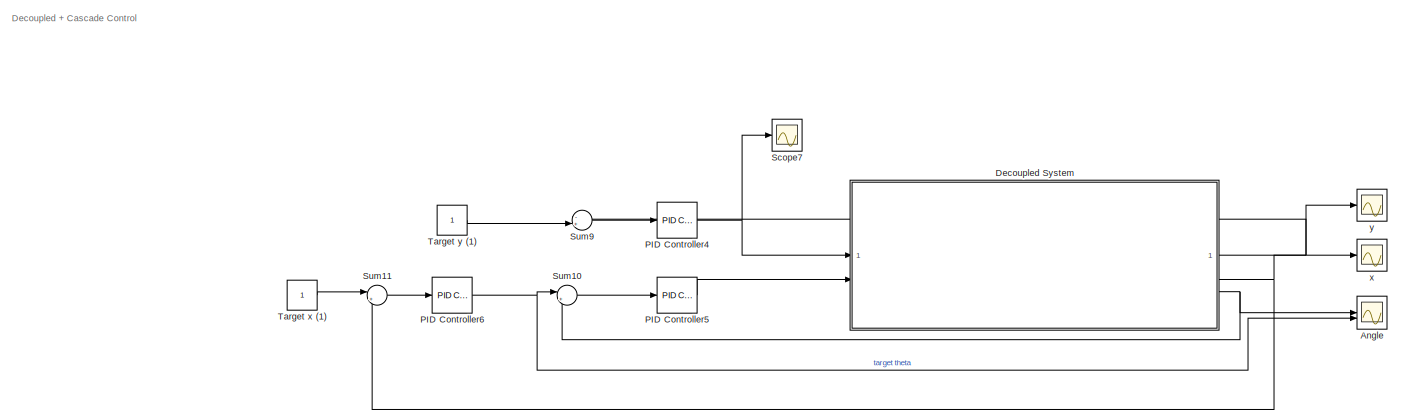
[diagram: root canvas - part 1/5, middle right region]
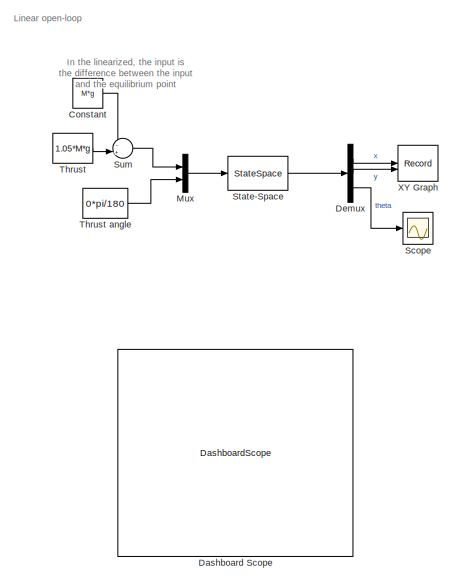
[diagram: root canvas - part 2/5, left side, full height]
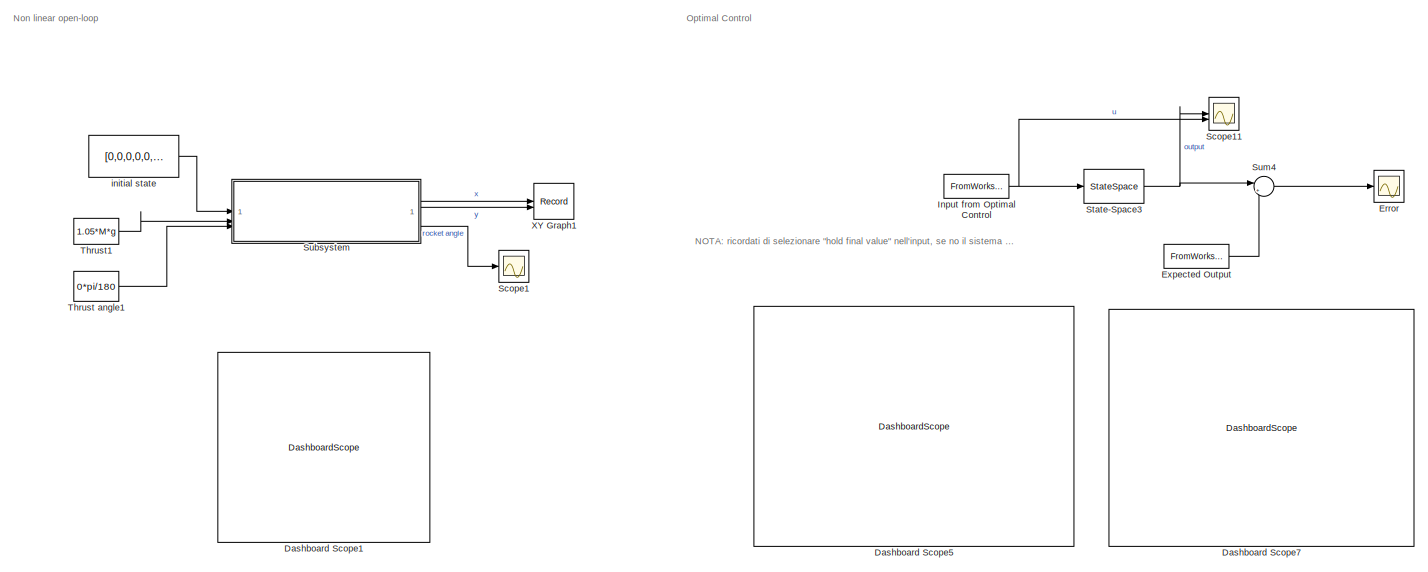
[diagram: root canvas - part 3/5, left side, full height]
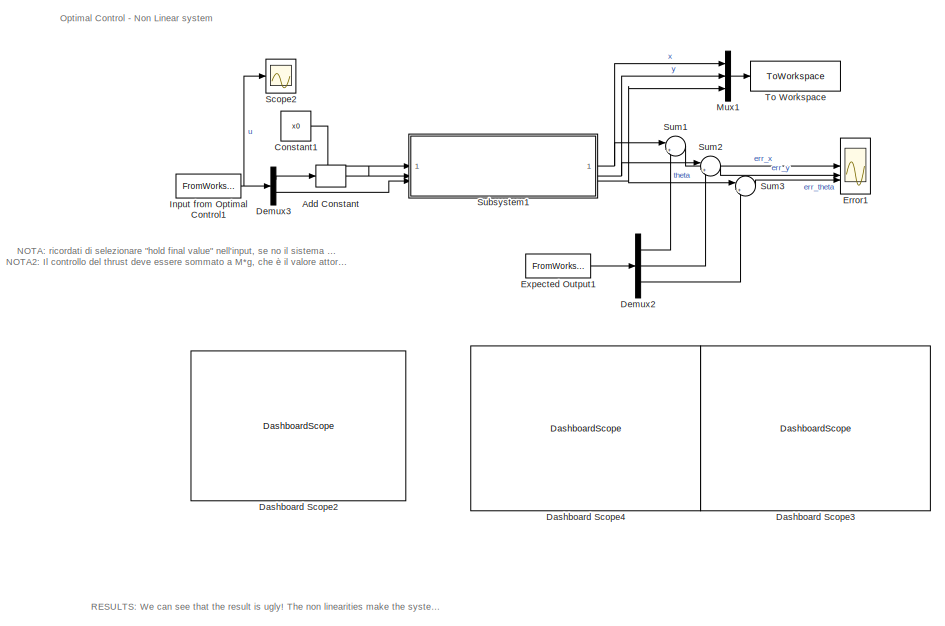
[diagram: root canvas - part 4/5, center side, full height]
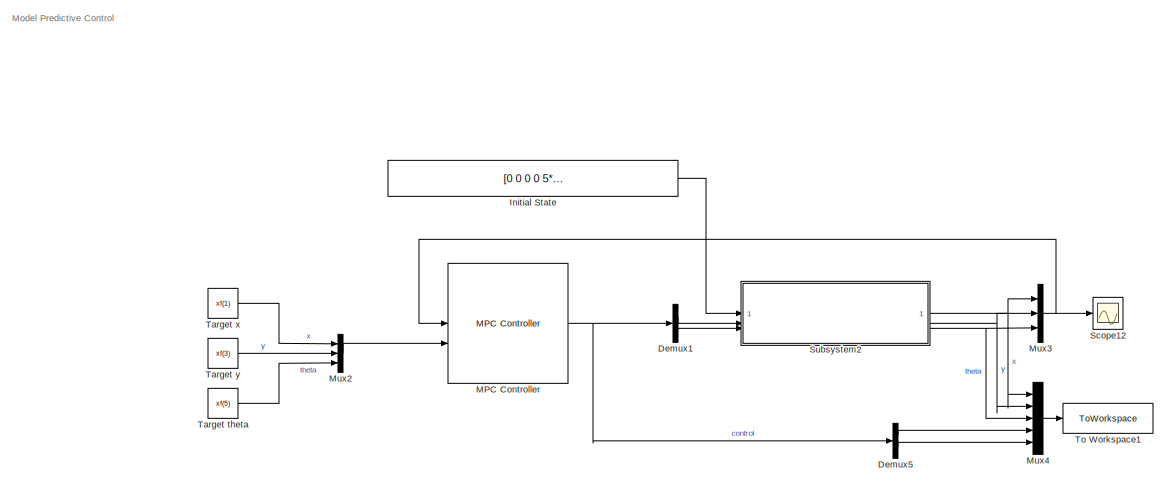
[diagram: root canvas - part 5/5, center side, full height]
MODEL slx_1d75a5e45728
KIND model
CONFIG AbsTol = auto
CONFIG EnableMultiTasking = off
CONFIG FixedStep = auto
CONFIG MaxStep = auto
CONFIG MinStep = auto
CONFIG RelTol = 1e-3
CONFIG SampleTimeConstraint = Unconstrained
CONFIG SolverName = VariableStepAuto
CONFIG StartTime = 0.0
CONFIG StopTime = 20.0
BLOCK [Bias] Add Constant
  Bias = M*g
  SaturateOnIntegerOverflow = off
BLOCK [Scope] Angle
  Floating = off
  NumInputPorts = 2
  ScopeSpecificationString = Simulink.scopes.TimeScopeBlockCfg('CurrentConfiguration', extmgr.ConfigurationSet(extmgr.Configuration('Core','General UI',true),extmgr.Configuration('Core','Source UI',true),extmgr.Configuration('Sources','WiredSimulink',true,'DataLoggingVariableName','ScopeData2'),extmgr.Configuration('Visuals','Time Domain',true,'SerializedDisplays',{struct('MinYLimReal','-1.07256','MaxYLimReal','0.20991','YLab...<+1479ch>
BLOCK [Constant] Constant
  Value = M*g
BLOCK [Constant] Constant1
  Value = x0
BLOCK [DashboardScope] Dashboard Scope
BLOCK [DashboardScope] Dashboard Scope1
BLOCK [DashboardScope] Dashboard Scope2
BLOCK [DashboardScope] Dashboard Scope3
BLOCK [DashboardScope] Dashboard Scope4
BLOCK [DashboardScope] Dashboard Scope5
BLOCK [DashboardScope] Dashboard Scope7
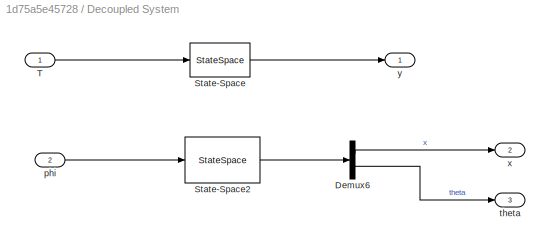
BLOCK [SubSystem] Decoupled System
BLOCK [Demux] Decoupled System/Demux6
  Outputs = 2
BLOCK [StateSpace] Decoupled System/State-Space
  A = Ay
  B = By
  C = Cy
  D = Dy
  InitialCondition = [0, 0]
BLOCK [StateSpace] Decoupled System/State-Space2
  A = Axt
  B = Bxt
  C = Cxt
  D = Dxt
  InitialCondition = [0 0 0 0]
BLOCK [Inport] Decoupled System/T
BLOCK [Inport] Decoupled System/phi
  Port = 2
BLOCK [Outport] Decoupled System/theta
  Port = 3
BLOCK [Outport] Decoupled System/x
  Port = 2
BLOCK [Outport] Decoupled System/y
BLOCK [Demux] Demux
  Outputs = 3
BLOCK [Demux] Demux1
  Commented = on
  Outputs = 2
BLOCK [Demux] Demux2
  Outputs = 3
BLOCK [Demux] Demux3
  Outputs = 2
BLOCK [Demux] Demux5
  Commented = on
  Outputs = 2
BLOCK [Scope] Error
  Floating = off
  NumInputPorts = 1
  ScopeSpecificationString = Simulink.scopes.TimeScopeBlockCfg('CurrentConfiguration', extmgr.ConfigurationSet(extmgr.Configuration('Core','General UI',true),extmgr.Configuration('Core','Source UI',true),extmgr.Configuration('Sources','WiredSimulink',true,'DataLoggingVariableName','ScopeData1'),extmgr.Configuration('Visuals','Time Domain',true,'SerializedDisplays',{struct('MinYLimReal','-0.01214','MaxYLimReal','0.00524','YLab...<+1472ch>
BLOCK [Scope] Error1
  Floating = off
  NumInputPorts = 3
  ScopeSpecificationString = Simulink.scopes.TimeScopeBlockCfg('CurrentConfiguration', extmgr.ConfigurationSet(extmgr.Configuration('Core','General UI',true),extmgr.Configuration('Core','Source UI',true),extmgr.Configuration('Sources','WiredSimulink',true,'DataLoggingVariableName','ScopeData3'),extmgr.Configuration('Visuals','Time Domain',true,'SerializedDisplays',{struct('MinYLimReal','-1.97863','MaxYLimReal','3.18409','YLab...<+1473ch>
BLOCK [FromWorkspace] Expected Output
  OutputAfterFinalValue = Holding final value
  VariableName = ySim
BLOCK [FromWorkspace] Expected Output1
  OutputAfterFinalValue = Holding final value
  VariableName = ySim
BLOCK [Constant] Initial State
  Commented = on
  Value = [0 0 0 0 5*pi/180 0]
BLOCK [FromWorkspace] Input from Optimal Control
  OutputAfterFinalValue = Holding final value
  SampleTime = Ts
  VariableName = uSim
BLOCK [FromWorkspace] Input from Optimal Control1
  OutputAfterFinalValue = Holding final value
  SampleTime = Ts
  VariableName = uSim
BLOCK [Reference] MPC Controller  REF=mpclib/MPC Controller  (lib defined in mdl_ae329e0e0455)
  Commented = on
  SCDEnableBlockLinearizationSpecification = on
  SourceBlock = mpclib/MPC Controller
  SourceType = MPC
BLOCK [Mux] Mux
  DisplayOption = bar
  Inputs = 2
BLOCK [Mux] Mux1
  DisplayOption = bar
  Inputs = 3
BLOCK [Mux] Mux2
  Commented = on
  DisplayOption = bar
  Inputs = 3
BLOCK [Mux] Mux3
  Commented = on
  DisplayOption = bar
  Inputs = 3
BLOCK [Mux] Mux4
  Commented = on
  DisplayOption = bar
  Inputs = 5
BLOCK [Reference] PID Controller4  REF=slpidlib/PID Controller
  LibrarySourceBlock = simulink/Continuous/PID Controller
  SourceBlock = slpidlib/PID Controller
  SourceType = PID 1dof
BLOCK [Reference] PID Controller5  REF=slpidlib/PID Controller
  LibrarySourceBlock = simulink/Continuous/PID Controller
  SourceBlock = slpidlib/PID Controller
  SourceType = PID 1dof
BLOCK [Reference] PID Controller6  REF=slpidlib/PID Controller
  LibrarySourceBlock = simulink/Continuous/PID Controller
  SourceBlock = slpidlib/PID Controller
  SourceType = PID 1dof
BLOCK [Scope] Scope
  Floating = off
  NumInputPorts = 1
  ScopeSpecificationString = Simulink.scopes.TimeScopeBlockCfg('CurrentConfiguration', extmgr.ConfigurationSet(extmgr.Configuration('Core','General UI',true),extmgr.Configuration('Core','Source UI',true),extmgr.Configuration('Sources','WiredSimulink',true,'DataLoggingVariableName','ScopeData1'),extmgr.Configuration('Visuals','Time Domain',true),extmgr.Configuration('Tools','Plot Navigation',true),extmgr.Configuration('Tools',...<+40ch>
BLOCK [Scope] Scope1
  Floating = off
  NumInputPorts = 1
  ScopeSpecificationString = Simulink.scopes.TimeScopeBlockCfg('CurrentConfiguration', extmgr.ConfigurationSet(extmgr.Configuration('Core','General UI',true),extmgr.Configuration('Core','Source UI',true),extmgr.Configuration('Sources','WiredSimulink',true),extmgr.Configuration('Visuals','Time Domain',true,'SerializedDisplays',{struct('MinYLimReal','-46.22619','MaxYLimReal','5.13624','YLabelReal','','MinYLimMag','0.00000','Max...<+1425ch>
BLOCK [Scope] Scope11
  Floating = off
  NumInputPorts = 2
  ScopeSpecificationString = Simulink.scopes.TimeScopeBlockCfg('CurrentConfiguration', extmgr.ConfigurationSet(extmgr.Configuration('Core','General UI',true),extmgr.Configuration('Core','Source UI',true),extmgr.Configuration('Sources','WiredSimulink',true,'DataLoggingVariableName','ScopeData2'),extmgr.Configuration('Visuals','Time Domain',true,'SerializedDisplays',{struct('MinYLimReal','-18.39375','MaxYLimReal','18.39375','YL...<+1496ch>
BLOCK [Scope] Scope12
  Commented = on
  Floating = off
  NumInputPorts = 1
  ScopeSpecificationString = Simulink.scopes.TimeScopeBlockCfg('CurrentConfiguration', extmgr.ConfigurationSet(extmgr.Configuration('Core','General UI',true),extmgr.Configuration('Core','Source UI',true),extmgr.Configuration('Sources','WiredSimulink',true,'DataLoggingVariableName','ScopeData5'),extmgr.Configuration('Visuals','Time Domain',true,'SerializedDisplays',{struct('MinYLimReal','-17.76328','MaxYLimReal','2.28583','YLa...<+1465ch>
BLOCK [Scope] Scope2
  Floating = off
  NumInputPorts = 1
  ScopeSpecificationString = Simulink.scopes.TimeScopeBlockCfg('CurrentConfiguration', extmgr.ConfigurationSet(extmgr.Configuration('Core','General UI',true),extmgr.Configuration('Core','Source UI',true),extmgr.Configuration('Sources','WiredSimulink',true,'DataLoggingVariableName','ScopeData4'),extmgr.Configuration('Visuals','Time Domain',true,'SerializedDisplays',{struct('MinYLimReal','-18.39375','MaxYLimReal','18.39375','YL...<+1492ch>
BLOCK [Scope] Scope7
  Floating = off
  NumInputPorts = 1
  ScopeSpecificationString = Simulink.scopes.TimeScopeBlockCfg('CurrentConfiguration', extmgr.ConfigurationSet(extmgr.Configuration('Core','General UI',true),extmgr.Configuration('Core','Source UI',true),extmgr.Configuration('Sources','WiredSimulink',true,'DataLoggingVariableName','ScopeData1'),extmgr.Configuration('Visuals','Time Domain',true,'SerializedDisplays',{struct('MinYLimReal','-32.3576','MaxYLimReal','272.34163','YL...<+1471ch>
BLOCK [StateSpace] State-Space
  A = A
  B = B
  C = C
  D = D
  InitialCondition = [0, 0, 0, 0, 0, 0]
BLOCK [StateSpace] State-Space3
  A = sys.a
  B = sys.b
  C = sys.c
  D = sys.d
  InitialCondition = x0
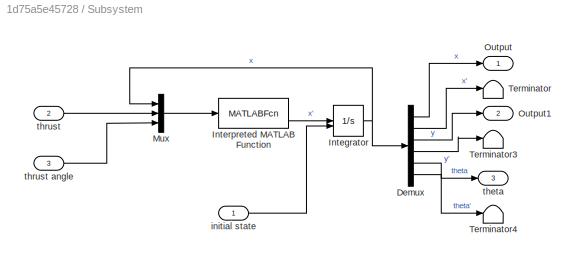
BLOCK [SubSystem] Subsystem
BLOCK [Demux] Subsystem/Demux
  Outputs = 6
BLOCK [Integrator] Subsystem/Integrator
  InitialConditionSource = external
BLOCK [MATLABFcn] Subsystem/Interpreted MATLAB Function
  MATLABFcn = non_linear_dynamic3_thrust
BLOCK [Mux] Subsystem/Mux
  DisplayOption = bar
  Inputs = 3
BLOCK [Outport] Subsystem/Output
BLOCK [Outport] Subsystem/Output1
  Port = 2
BLOCK [Terminator] Subsystem/Terminator
BLOCK [Terminator] Subsystem/Terminator3
BLOCK [Terminator] Subsystem/Terminator4
BLOCK [Inport] Subsystem/initial state
BLOCK [Outport] Subsystem/theta
  Port = 3
BLOCK [Inport] Subsystem/thrust
  Port = 2
BLOCK [Inport] Subsystem/thrust angle
  Port = 3
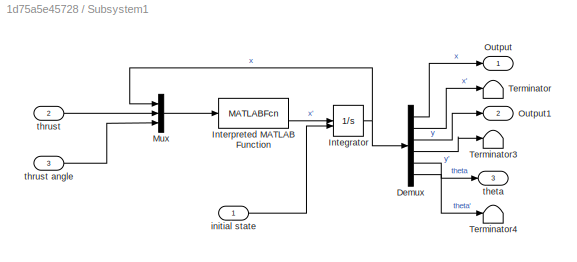
BLOCK [SubSystem] Subsystem1
BLOCK [Demux] Subsystem1/Demux
  Outputs = 6
BLOCK [Integrator] Subsystem1/Integrator
  InitialConditionSource = external
BLOCK [MATLABFcn] Subsystem1/Interpreted MATLAB Function
  MATLABFcn = non_linear_dynamic3_thrust
BLOCK [Mux] Subsystem1/Mux
  DisplayOption = bar
  Inputs = 3
BLOCK [Outport] Subsystem1/Output
BLOCK [Outport] Subsystem1/Output1
  Port = 2
BLOCK [Terminator] Subsystem1/Terminator
BLOCK [Terminator] Subsystem1/Terminator3
BLOCK [Terminator] Subsystem1/Terminator4
BLOCK [Inport] Subsystem1/initial state
BLOCK [Outport] Subsystem1/theta
  Port = 3
BLOCK [Inport] Subsystem1/thrust
  Port = 2
BLOCK [Inport] Subsystem1/thrust angle
  Port = 3
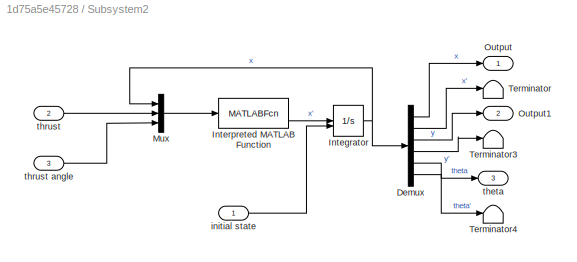
BLOCK [SubSystem] Subsystem2
  Commented = on
BLOCK [Demux] Subsystem2/Demux
  Outputs = 6
BLOCK [Integrator] Subsystem2/Integrator
  InitialConditionSource = external
BLOCK [MATLABFcn] Subsystem2/Interpreted MATLAB Function
  MATLABFcn = non_linear_dynamic3_thrust
BLOCK [Mux] Subsystem2/Mux
  DisplayOption = bar
  Inputs = 3
BLOCK [Outport] Subsystem2/Output
BLOCK [Outport] Subsystem2/Output1
  Port = 2
BLOCK [Terminator] Subsystem2/Terminator
BLOCK [Terminator] Subsystem2/Terminator3
BLOCK [Terminator] Subsystem2/Terminator4
BLOCK [Inport] Subsystem2/initial state
BLOCK [Outport] Subsystem2/theta
  Port = 3
BLOCK [Inport] Subsystem2/thrust
  Port = 2
BLOCK [Inport] Subsystem2/thrust angle
  Port = 3
BLOCK [Sum] Sum
  Inputs = -+|
BLOCK [Sum] Sum1
  Inputs = |+-
BLOCK [Sum] Sum10
  Inputs = |+-
BLOCK [Sum] Sum11
  Inputs = |+-
BLOCK [Sum] Sum2
  Inputs = |+-
BLOCK [Sum] Sum3
  Inputs = |+-
BLOCK [Sum] Sum4
  Inputs = |+-
BLOCK [Sum] Sum9
  Inputs = -+|
BLOCK [Constant] Target theta
  Commented = on
  Value = xf(5)
BLOCK [Constant] Target x
  Commented = on
  Value = xf(1)
BLOCK [Constant] Target x (1)
BLOCK [Constant] Target y
  Commented = on
  Value = xf(3)
BLOCK [Constant] Target y (1)
BLOCK [Constant] Thrust
  Value = 1.05*M*g
BLOCK [Constant] Thrust angle
  Value = 0*pi/180
BLOCK [Constant] Thrust angle1
  Value = 0*pi/180
BLOCK [Constant] Thrust1
  Value = 1.05*M*g
BLOCK [ToWorkspace] To Workspace
  FixptAsFi = on
  MaxDataPoints = inf
  SampleTime = -1
  SaveFormat = Timeseries
  VariableName = simout1
BLOCK [ToWorkspace] To Workspace1
  Commented = on
  FixptAsFi = on
  MaxDataPoints = inf
  SampleTime = -1
  SaveFormat = Timeseries
  VariableName = MPCsim
BLOCK [Record] XY Graph
  CompatibilityTag = XY
  FileSettingsInternal = {"entries":[{"content":{"excelSettings":{"content":{},"type":"Streamout.ExcelSettings"}},"type":"Streamout.FileSettingStorage","uuid":""}],"packageUris":["http:\/\/schema.mathworks.com\/mf0\/streamout_blocks\/R2020a"],"version":"1.0"}
  Layout = [1 1]
  SignalsInternal = {"entries":[{"content":{"signals":[{"content":{"blockPath":[],"dimensions":[1],"domain":"","lineColor":"#edb120","lineWidth":2,"plots":[ 1 ],"port":1,"sid":[""],"signalID":1,"signalName":"x"},"type":"RecordBlkView.Signal","uuid":""},{"content":{"blockPath":[],"dimensions":[1],"domain":"","lineColor":"#7e2f8e","lineWidth":2,"plots":[ 1 ],"port":2,"sid":[""],"signalID":2,"signalName":"y"},"type":"Re...<+176ch>
  VisualizationBindings = {"xyplotplugin":{"info":[{"series":[{"bindingParametersList":[{"parameter":"X-Axis","signalID":1,"signalName":"x"},{"parameter":"Y-Axis","signalID":2,"signalName":"y"}],"seriesID":0}],"subplotID":1}]}}
BLOCK [Record] XY Graph1
  CompatibilityTag = XY
  FileSettingsInternal = {"entries":[{"content":{"excelSettings":{"content":{},"type":"Streamout.ExcelSettings"}},"type":"Streamout.FileSettingStorage","uuid":""}],"packageUris":["http:\/\/schema.mathworks.com\/mf0\/streamout_blocks\/R2020a"],"version":"1.0"}
  Layout = [1 1]
  SignalsInternal = {"entries":[{"content":{"signals":[{"content":{"blockPath":[],"dimensions":[1],"domain":"","lineColor":"#77ac30","lineWidth":2,"plots":[ 1 ],"port":1,"sid":[""],"signalID":1,"signalName":"x"},"type":"RecordBlkView.Signal","uuid":""},{"content":{"blockPath":[],"dimensions":[1],"domain":"","lineColor":"#4dbeee","lineWidth":2,"plots":[ 1 ],"port":2,"sid":[""],"signalID":2,"signalName":"y"},"type":"Re...<+176ch>
  VisualizationBindings = {"xyplotplugin":{"info":[{"series":[{"bindingParametersList":[{"parameter":"X-Axis","signalID":1,"signalName":"x"},{"parameter":"Y-Axis","signalID":2,"signalName":"y"}],"seriesID":0}],"subplotID":1}]}}
BLOCK [Constant] initial state
  Value = [0,0,0,0,0,0]
BLOCK [Scope] x
  Floating = off
  NumInputPorts = 1
  ScopeSpecificationString = Simulink.scopes.TimeScopeBlockCfg('CurrentConfiguration', extmgr.ConfigurationSet(extmgr.Configuration('Core','General UI',true),extmgr.Configuration('Core','Source UI',true),extmgr.Configuration('Sources','WiredSimulink',true,'DataLoggingVariableName','ScopeData3'),extmgr.Configuration('Visuals','Time Domain',true,'SerializedDisplays',{struct('MinYLimReal','-0.22185','MaxYLimReal','1.26022','YLab...<+1489ch>
BLOCK [Scope] y
  Floating = off
  NumInputPorts = 1
  ScopeSpecificationString = Simulink.scopes.TimeScopeBlockCfg('CurrentConfiguration', extmgr.ConfigurationSet(extmgr.Configuration('Core','General UI',true),extmgr.Configuration('Core','Source UI',true),extmgr.Configuration('Sources','WiredSimulink',true,'DataLoggingVariableName','ScopeData1'),extmgr.Configuration('Visuals','Time Domain',true,'SerializedDisplays',{struct('MinYLimReal','-0.12521','MaxYLimReal','1.12686','YLab...<+1483ch>
ANNOTATION (root): RESULTS: We can see that the result is ugly! The non linearities make the system behave in a totally different way compared to the simulation in the linearized case
ANNOTATION (root): In the linearized, the input is the difference between the input and the equilibrium point
ANNOTATION (root): Decoupled + Cascade Control
ANNOTATION (root): Linear open-loop
ANNOTATION (root): Model Predictive Control
ANNOTATION (root): NOTA: ricordati di selezionare "hold final value" nell'input, se no il sistema diverge malissimo!
ANNOTATION (root): NOTA: ricordati di selezionare "hold final value" nell'input, se no il sistema diverge malissimo! NOTA2: Il controllo del thrust deve essere sommato a M*g, che è il valore attorno al quale abbiamo linearizzato
ANNOTATION (root): Non linear open-loop
ANNOTATION (root): Optimal Control
ANNOTATION (root): Optimal Control - Non Linear system
LINE Add Constant:1 -> Subsystem1:2
LINE Constant1:1 -> Subsystem1:1
LINE Constant:1 -> Sum:1
LINE Decoupled System/Demux6:1 -> Decoupled System/x:1
LINE Decoupled System/Demux6:2 -> Decoupled System/theta:1
LINE Decoupled System/State-Space2:1 -> Decoupled System/Demux6:1
LINE Decoupled System/State-Space:1 -> Decoupled System/y:1
LINE Decoupled System/T:1 -> Decoupled System/State-Space:1
LINE Decoupled System/phi:1 -> Decoupled System/State-Space2:1
NET Decoupled System:1 -> Sum9:1, y:1
NET Decoupled System:2 -> Sum11:2, x:1
NET Decoupled System:3 -> Angle:1, Sum10:2
LINE Demux1:1 -> Subsystem2:2
LINE Demux1:2 -> Subsystem2:3
LINE Demux2:1 -> Sum1:2
LINE Demux2:2 -> Sum2:2
LINE Demux2:3 -> Sum3:2
LINE Demux3:1 -> Add Constant:1
LINE Demux3:2 -> Subsystem1:3
LINE Demux5:1 -> Mux4:4
LINE Demux5:2 -> Mux4:5
LINE Demux:1 -> XY Graph:1
LINE Demux:2 -> XY Graph:2
LINE Demux:3 -> Scope:1
LINE Expected Output1:1 -> Demux2:1
LINE Expected Output:1 -> Sum4:2
LINE Initial State:1 -> Subsystem2:1
NET Input from Optimal Control1:1 -> Demux3:1, Scope2:1
NET Input from Optimal Control:1 -> Scope11:2, State-Space3:1
NET MPC Controller:1 -> Demux1:1, Demux5:1
LINE Mux1:1 -> To Workspace:1
LINE Mux2:1 -> MPC Controller:2
NET Mux3:1 -> MPC Controller:1, Scope12:1
LINE Mux4:1 -> To Workspace1:1
LINE Mux:1 -> State-Space:1
NET PID Controller4:1 -> Decoupled System:1, Scope7:1
LINE PID Controller5:1 -> Decoupled System:2
NET PID Controller6:1 -> Angle:2, Sum10:1
NET State-Space3:1 -> Scope11:1, Sum4:1
LINE State-Space:1 -> Demux:1
LINE Subsystem/Demux:1 -> Subsystem/Output:1
LINE Subsystem/Demux:2 -> Subsystem/Terminator:1
LINE Subsystem/Demux:3 -> Subsystem/Output1:1
LINE Subsystem/Demux:4 -> Subsystem/Terminator3:1
LINE Subsystem/Demux:5 -> Subsystem/theta:1
LINE Subsystem/Demux:6 -> Subsystem/Terminator4:1
NET Subsystem/Integrator:1 -> Subsystem/Demux:1, Subsystem/Mux:1
LINE Subsystem/Interpreted MATLAB Function:1 -> Subsystem/Integrator:1
LINE Subsystem/Mux:1 -> Subsystem/Interpreted MATLAB Function:1
LINE Subsystem/initial state:1 -> Subsystem/Integrator:2
LINE Subsystem/thrust angle:1 -> Subsystem/Mux:3
LINE Subsystem/thrust:1 -> Subsystem/Mux:2
LINE Subsystem1/Demux:1 -> Subsystem1/Output:1
LINE Subsystem1/Demux:2 -> Subsystem1/Terminator:1
LINE Subsystem1/Demux:3 -> Subsystem1/Output1:1
LINE Subsystem1/Demux:4 -> Subsystem1/Terminator3:1
LINE Subsystem1/Demux:5 -> Subsystem1/theta:1
LINE Subsystem1/Demux:6 -> Subsystem1/Terminator4:1
NET Subsystem1/Integrator:1 -> Subsystem1/Demux:1, Subsystem1/Mux:1
LINE Subsystem1/Interpreted MATLAB Function:1 -> Subsystem1/Integrator:1
LINE Subsystem1/Mux:1 -> Subsystem1/Interpreted MATLAB Function:1
LINE Subsystem1/initial state:1 -> Subsystem1/Integrator:2
LINE Subsystem1/thrust angle:1 -> Subsystem1/Mux:3
LINE Subsystem1/thrust:1 -> Subsystem1/Mux:2
NET Subsystem1:1 -> Mux1:1, Sum1:1
NET Subsystem1:2 -> Mux1:2, Sum2:1
NET Subsystem1:3 -> Mux1:3, Sum3:1
LINE Subsystem2/Demux:1 -> Subsystem2/Output:1
LINE Subsystem2/Demux:2 -> Subsystem2/Terminator:1
LINE Subsystem2/Demux:3 -> Subsystem2/Output1:1
LINE Subsystem2/Demux:4 -> Subsystem2/Terminator3:1
LINE Subsystem2/Demux:5 -> Subsystem2/theta:1
LINE Subsystem2/Demux:6 -> Subsystem2/Terminator4:1
NET Subsystem2/Integrator:1 -> Subsystem2/Demux:1, Subsystem2/Mux:1
LINE Subsystem2/Interpreted MATLAB Function:1 -> Subsystem2/Integrator:1
LINE Subsystem2/Mux:1 -> Subsystem2/Interpreted MATLAB Function:1
LINE Subsystem2/initial state:1 -> Subsystem2/Integrator:2
LINE Subsystem2/thrust angle:1 -> Subsystem2/Mux:3
LINE Subsystem2/thrust:1 -> Subsystem2/Mux:2
NET Subsystem2:1 -> Mux3:1, Mux4:1
NET Subsystem2:2 -> Mux3:2, Mux4:2
NET Subsystem2:3 -> Mux3:3, Mux4:3
LINE Subsystem:1 -> XY Graph1:1
LINE Subsystem:2 -> XY Graph1:2
LINE Subsystem:3 -> Scope1:1
LINE Sum10:1 -> PID Controller5:1
LINE Sum11:1 -> PID Controller6:1
LINE Sum1:1 -> Error1:1
LINE Sum2:1 -> Error1:2
LINE Sum3:1 -> Error1:3
LINE Sum4:1 -> Error:1
LINE Sum9:1 -> PID Controller4:1
LINE Sum:1 -> Mux:1
LINE Target theta:1 -> Mux2:3
LINE Target x (1):1 -> Sum11:1
LINE Target x:1 -> Mux2:1
LINE Target y (1):1 -> Sum9:2
LINE Target y:1 -> Mux2:2
LINE Thrust angle1:1 -> Subsystem:3
LINE Thrust angle:1 -> Mux:2
LINE Thrust1:1 -> Subsystem:2
LINE Thrust:1 -> Sum:2
LINE initial state:1 -> Subsystem:1
note: NET lines group one-source signal fan-out (src -> all destinations, sorted); 1:1 wires keep LINE
